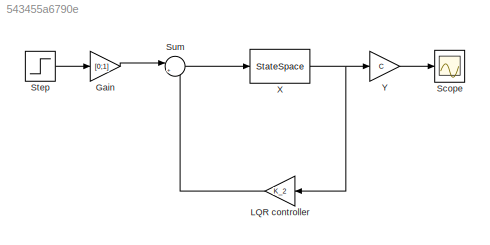
MODEL slx_543455a6790e
KIND model
CONFIG AbsTol = auto
CONFIG EnableMultiTasking = off
CONFIG FixedStep = auto
CONFIG MaxStep = auto
CONFIG MinStep = auto
CONFIG RelTol = 1e-3
CONFIG SampleTimeConstraint = Unconstrained
CONFIG SolverName = VariableStepAuto
CONFIG StartTime = 0.0
CONFIG StopTime = 10.0
BLOCK [Gain] Gain
  Gain = [0;1]
  Multiplication = Matrix(K*u)
BLOCK [Gain] LQR controller
  Gain = K_2
  Multiplication = Matrix(K*u)
BLOCK [Scope] Scope
  Floating = off
  NumInputPorts = 1
  Ports = [1]
  ScopeSpecificationString = Simulink.scopes.TimeScopeBlockCfg('CurrentConfiguration', extmgr.ConfigurationSet(extmgr.Configuration('Core','General UI',true,'FigureColor',[1 1 1]),extmgr.Configuration('Core','Source UI',true),extmgr.Configuration('Sources','WiredSimulink',true),extmgr.Configuration('Visuals','Time Domain',true,'SerializedDisplays',{struct('MinYLimReal','-0.20082','MaxYLimReal','0.80736','YLabelReal','','MinYL...<+2123ch>
BLOCK [Step] Step
  SampleTime = 0
  Time = 0
BLOCK [Sum] Sum
  Inputs = |+-
  Ports = [2, 1]
BLOCK [StateSpace] X
  A = A
  B = B
  C = eye(6)
  D = zeros(6,2)
  InitialCondition = [0.2 -0.1 0.15 -1 0.8 0]
  Ports = [1, 1]
BLOCK [Gain] Y
  Gain = C
  Multiplication = Matrix(K*u)
LINE Gain:1 -> Sum:1
LINE LQR controller:1 -> Sum:2
LINE Step:1 -> Gain:1
LINE Sum:1 -> X:1
NET X:1 -> LQR controller:1, Y:1
LINE Y:1 -> Scope:1
note: NET lines group one-source signal fan-out (src -> all destinations, sorted); 1:1 wires keep LINE
